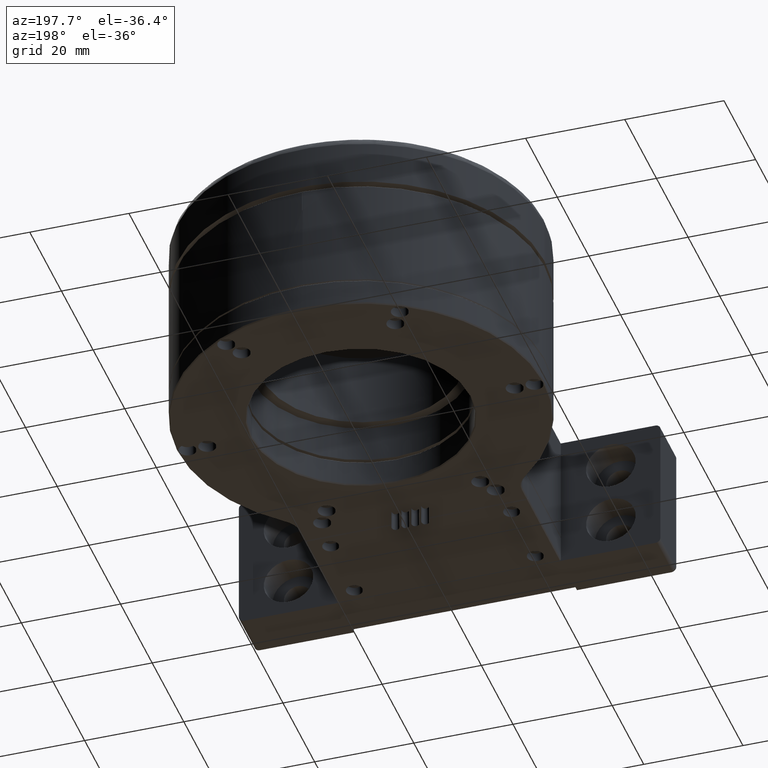
[diagram: clean part render]
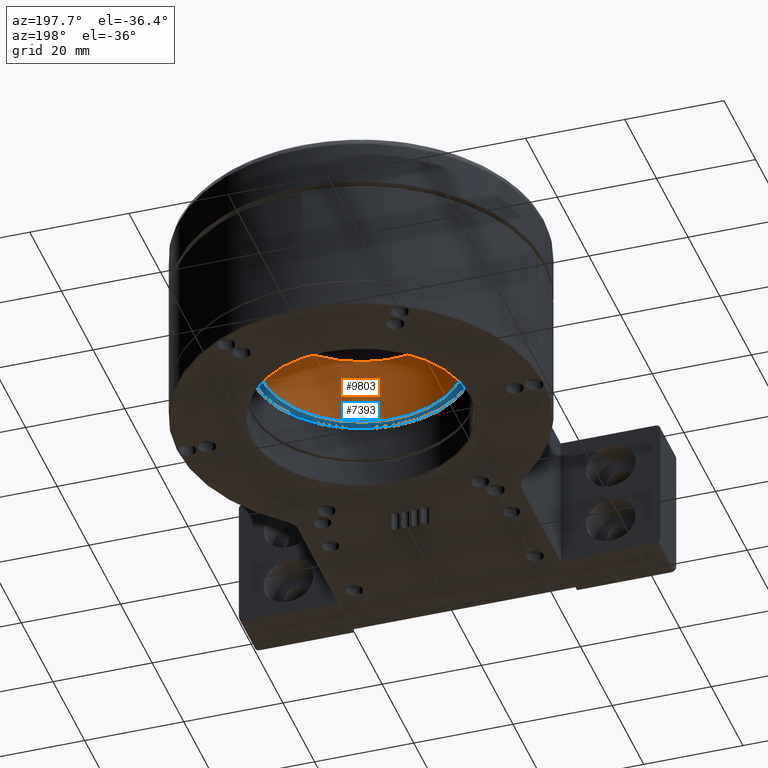
[diagram: same view with the hole feature highlighted: cylindrical wall and planar end face, labeled with their STEP entity ids]
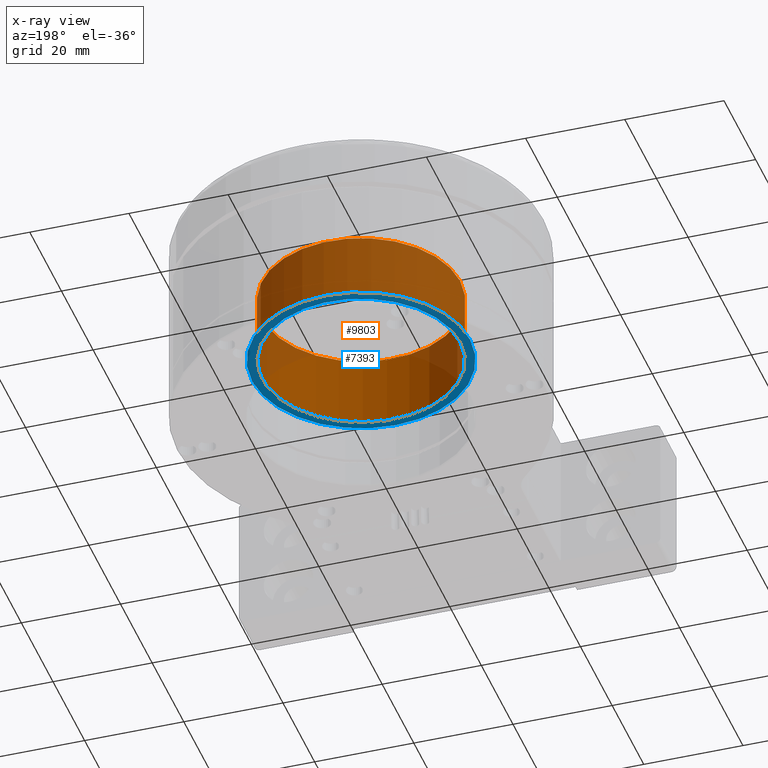
[diagram: x-ray of the same camera — body ghosted, the hole faces saturated]
A machine part, auxiliary view. The highlighted faces form one hole feature of diameter 40 mm: the cylindrical wall (entity #9803, orange) and its adjacent planar end face (entity #7393, blue) — they share a circular edge in the B-rep.
The next image is the same camera in x-ray (body ghosted, the hole faces saturated) — the bore reads through the body.
Wall:
#611 = DIRECTION ( 'NONE',  ( -1.000000000000000000, 3.469446951953606300E-16, 0.000000000000000000 ) ) ;
#667 = CARTESIAN_POINT ( 'NONE',  ( 2.938187887435697452E-14, 55.99999999999998579, 29.49999999999996092 ) ) ;
#693 = EDGE_LOOP ( 'NONE', ( #2864 ) ) ;
#721 = EDGE_CURVE ( 'NONE', #10196, #10196, #1154, .T. ) ;
#974 = CARTESIAN_POINT ( 'NONE',  ( -20.00000000000001776, 55.99999999999999289, 13.53999999999998671 ) ) ;
#1037 = VERTEX_POINT ( 'NONE', #974 ) ;
#1154 = CIRCLE ( 'NONE', #7358, 20.00000000000004619 ) ;
#2864 = ORIENTED_EDGE ( 'NONE', *, *, #721, .F. ) ;
#3474 = CARTESIAN_POINT ( 'NONE',  ( 2.938187957577587326E-14, 55.99999999999998579, 13.53999999999998671 ) ) ;
#3657 = DIRECTION ( 'NONE',  ( -1.000000000000000000, 3.469446951953606300E-16, 0.000000000000000000 ) ) ;
#4080 = AXIS2_PLACEMENT_3D ( 'NONE', #667, #4501, #611 ) ;
#4334 = EDGE_LOOP ( 'NONE', ( #7143 ) ) ;
#4445 = CARTESIAN_POINT ( 'NONE',  ( -20.00000000000001776, 55.99999999999999289, 27.99999999999995737 ) ) ;
#4501 = DIRECTION ( 'NONE',  ( 4.394855288948004209E-23, -4.163150519802294301E-24, -1.000000000000000000 ) ) ;
#5362 = DIRECTION ( 'NONE',  ( 4.394855288948004209E-23, -4.163150519802294301E-24, -1.000000000000000000 ) ) ;
#5801 = AXIS2_PLACEMENT_3D ( 'NONE', #3474, #10055, #8233 ) ;
#7143 = ORIENTED_EDGE ( 'NONE', *, *, #8998, .F. ) ;
#7358 = AXIS2_PLACEMENT_3D ( 'NONE', #10116, #5362, #3657 ) ;
#8072 = FACE_OUTER_BOUND ( 'NONE', #4334, .T. ) ;
#8233 = DIRECTION ( 'NONE',  ( -1.000000000000000000, 3.469446951953606300E-16, 0.000000000000000000 ) ) ;
#8998 = EDGE_CURVE ( 'NONE', #1037, #1037, #9594, .T. ) ;
#9253 = CYLINDRICAL_SURFACE ( 'NONE', #4080, 20.00000000000004619 ) ;
#9594 = CIRCLE ( 'NONE', #5801, 20.00000000000004619 ) ;
#9803 = ADVANCED_FACE ( 'NONE', ( #8072, #11016 ), #9253, .F. ) ;
#10055 = DIRECTION ( 'NONE',  ( -4.394855288948004209E-23, 4.163150519802294301E-24, 1.000000000000000000 ) ) ;
#10116 = CARTESIAN_POINT ( 'NONE',  ( 2.938187894027980214E-14, 55.99999999999998579, 27.99999999999995737 ) ) ;
#10196 = VERTEX_POINT ( 'NONE', #4445 ) ;
#11016 = FACE_OUTER_BOUND ( 'NONE', #693, .T. ) ;
End face:
#398 = ORIENTED_EDGE ( 'NONE', *, *, #8998, .T. ) ;
#477 = DIRECTION ( 'NONE',  ( 4.394855288948004209E-23, -4.163143019460688023E-24, -1.000000000000000000 ) ) ;
#974 = CARTESIAN_POINT ( 'NONE',  ( -20.00000000000001776, 55.99999999999999289, 13.53999999999998671 ) ) ;
#1037 = VERTEX_POINT ( 'NONE', #974 ) ;
#1416 = EDGE_CURVE ( 'NONE', #1795, #1795, #9367, .T. ) ;
#1795 = VERTEX_POINT ( 'NONE', #3804 ) ;
#2264 = DIRECTION ( 'NONE',  ( 4.394855288948004209E-23, -4.163150519802294301E-24, -1.000000000000000000 ) ) ;
#3306 = FACE_OUTER_BOUND ( 'NONE', #9935, .T. ) ;
#3474 = CARTESIAN_POINT ( 'NONE',  ( 2.938187957577587326E-14, 55.99999999999998579, 13.53999999999998671 ) ) ;
#3804 = CARTESIAN_POINT ( 'NONE',  ( -22.00000000000002132, 55.99999999999999289, 13.53999999999998671 ) ) ;
#5251 = FACE_BOUND ( 'NONE', #10410, .T. ) ;
#5801 = AXIS2_PLACEMENT_3D ( 'NONE', #3474, #10055, #8233 ) ;
#6622 = AXIS2_PLACEMENT_3D ( 'NONE', #8118, #477, #11944 ) ;
#7393 = ADVANCED_FACE ( 'NONE', ( #3306, #5251 ), #10937, .T. ) ;
#8027 = DIRECTION ( 'NONE',  ( -1.000000000000000000, 3.154042683594188218E-16, 0.000000000000000000 ) ) ;
#8118 = CARTESIAN_POINT ( 'NONE',  ( 3.149824221646763472E-14, 35.99999999999994316, 13.53999999999998671 ) ) ;
#8233 = DIRECTION ( 'NONE',  ( -1.000000000000000000, 3.469446951953606300E-16, 0.000000000000000000 ) ) ;
#8998 = EDGE_CURVE ( 'NONE', #1037, #1037, #9594, .T. ) ;
#9367 = CIRCLE ( 'NONE', #9770, 22.00000000000004619 ) ;
#9594 = CIRCLE ( 'NONE', #5801, 20.00000000000004619 ) ;
#9770 = AXIS2_PLACEMENT_3D ( 'NONE', #10840, #2264, #8027 ) ;
#9935 = EDGE_LOOP ( 'NONE', ( #11174 ) ) ;
#10055 = DIRECTION ( 'NONE',  ( -4.394855288948004209E-23, 4.163150519802294301E-24, 1.000000000000000000 ) ) ;
#10410 = EDGE_LOOP ( 'NONE', ( #398 ) ) ;
#10840 = CARTESIAN_POINT ( 'NONE',  ( 2.938187957577587326E-14, 55.99999999999998579, 13.53999999999998671 ) ) ;
#10937 = PLANE ( 'NONE',  #6622 ) ;
#11174 = ORIENTED_EDGE ( 'NONE', *, *, #1416, .T. ) ;
#11944 = DIRECTION ( 'NONE',  ( -1.000000000000000000, 2.411265631607761368E-16, -4.394855288948004209E-23 ) ) ;